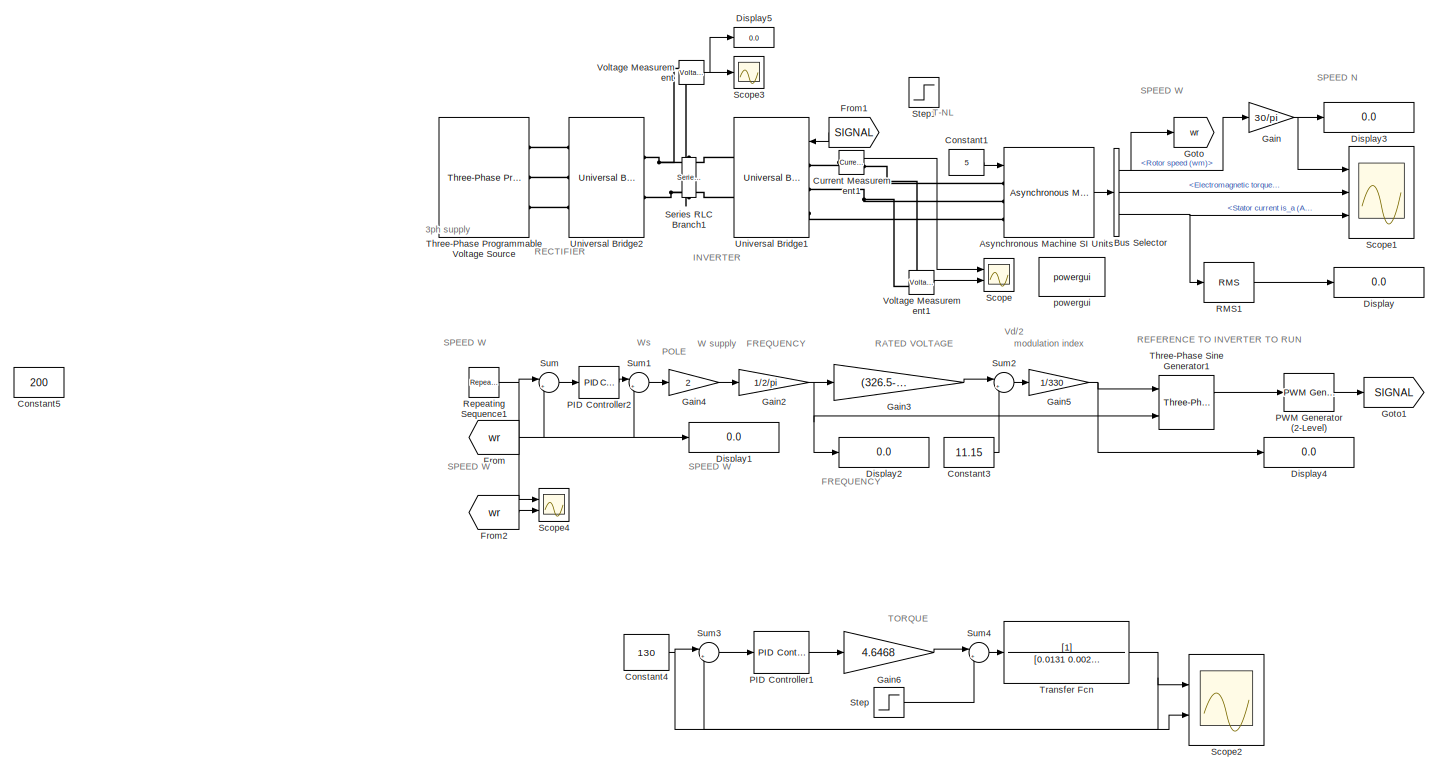
[diagram: root canvas - part 1/1, most of the canvas]
MODEL slx_bcdd4f59ab20
KIND model
CONFIG AbsTol = auto
CONFIG EnableMultiTasking = on
CONFIG FixedStep = auto
CONFIG MaxStep = 1e-4
CONFIG MinStep = auto
CONFIG RelTol = 1e-3
CONFIG SampleTimeConstraint = Unconstrained
CONFIG SolverName = ode23s
CONFIG StartTime = 0.0
CONFIG StopTime = 10
BLOCK [Reference] Asynchronous Machine SI Units1  REF=spsAsynchronousMachineSIUnitsLib/Asynchronous Machine
SI Units
  Ports = [1, 1, 0, 0, 0, 3]
  SourceBlock = spsAsynchronousMachineSIUnitsLib/Asynchronous Machine\nSI Units
  SourceProductBaseCode = PS
  SourceType = Asynchronous Machine
BLOCK [BusSelector] Bus Selector
  OutputSignals = Mechanical.Rotor speed (wm),Mechanical.Electromagnetic torque Te (N*m),Stator measurements.Stator current is_a (A)
  Ports = [1, 3]
BLOCK [Constant] Constant1
  Value = 5
BLOCK [Constant] Constant3
  Value = 11.15
BLOCK [Constant] Constant4
  Value = 130
BLOCK [Constant] Constant5
  Value = 200
BLOCK [Reference] Current Measurement1  REF=spsCurrentMeasurementLib/Current Measurement
  Ports = [0, 1, 0, 0, 0, 1, 1]
  SourceBlock = spsCurrentMeasurementLib/Current Measurement
  SourceProductBaseCode = PS
  SourceType = Current Measurement
  UserDataPersistent = on
BLOCK [Display] Display
  Decimation = 1
  Ports = [1]
BLOCK [Display] Display1
  Decimation = 1
  Ports = [1]
BLOCK [Display] Display2
  Decimation = 1
  Ports = [1]
BLOCK [Display] Display3
  Decimation = 1
  Ports = [1]
BLOCK [Display] Display4
  Decimation = 1
  Ports = [1]
BLOCK [Display] Display5
  Decimation = 1
  Ports = [1]
BLOCK [From] From
  GotoTag = wr
BLOCK [From] From1
  GotoTag = SIGNAL
  NameLocation = top
BLOCK [From] From2
  GotoTag = wr
BLOCK [Gain] Gain
  Gain = 30/pi
BLOCK [Gain] Gain2
  Gain = 1/2/pi
BLOCK [Gain] Gain3
  Gain = (326.5-11.15)/50
BLOCK [Gain] Gain4
  Gain = 2
BLOCK [Gain] Gain5
  Gain = 1/330
BLOCK [Gain] Gain6
  Gain = 4.6468
BLOCK [Goto] Goto
  GotoTag = wr
BLOCK [Goto] Goto1
  GotoTag = SIGNAL
BLOCK [Reference] PID Controller1  REF=slpidlib/PID Controller
  Ports = [1, 1]
  SourceBlock = slpidlib/PID Controller
  SourceProductBaseCode = SL
  SourceType = PID 1dof
BLOCK [Reference] PID Controller2  REF=slpidlib/PID Controller
  Ports = [1, 1]
  SourceBlock = slpidlib/PID Controller
  SourceProductBaseCode = SL
  SourceType = PID 1dof
BLOCK [Reference] PWM Generator (2-Level)  REF=spsPWMGenerator2LevelLib/PWM Generator
(2-Level)
  Ports = [1, 1]
  SourceBlock = spsPWMGenerator2LevelLib/PWM Generator\n(2-Level)
  SourceProductBaseCode = PS
  SourceType = PWM Generator (2-Level)
BLOCK [Reference] RMS1  REF=spsRMSLib/RMS
  Ports = [1, 1]
  SourceBlock = spsRMSLib/RMS
  SourceProductBaseCode = PS
  SourceType = RMS
BLOCK [Reference] Repeating Sequence1  REF=simulink/Sources/Repeating
Sequence
  Ports = [0, 1]
  SourceBlock = simulink/Sources/Repeating\nSequence
  SourceProductBaseCode = SL
  SourceType = Repeating table
BLOCK [Scope] Scope
  Floating = off
  NumInputPorts = 2
  Ports = [2]
  ScopeSpecificationString = Simulink.scopes.TimeScopeBlockCfg('CurrentConfiguration', extmgr.ConfigurationSet(extmgr.Configuration('Core','General UI',true),extmgr.Configuration('Core','Source UI',true),extmgr.Configuration('Sources','WiredSimulink',true,'DataLoggingVariableName','ScopeData1'),extmgr.Configuration('Visuals','Time Domain',true,'SerializedDisplays',{struct('MinYLimReal','-43.78871','MaxYLimReal','40.24617','YL...<+2069ch>
BLOCK [Scope] Scope1
  Floating = off
  NumInputPorts = 3
  Ports = [3]
  ScopeSpecificationString = Simulink.scopes.TimeScopeBlockCfg('CurrentConfiguration', extmgr.ConfigurationSet(extmgr.Configuration('Core','General UI',true,'FigureColor',[1 1 1]),extmgr.Configuration('Core','Source UI',true),extmgr.Configuration('Sources','WiredSimulink',true,'DataLoggingVariableName','ScopeData2'),extmgr.Configuration('Visuals','Time Domain',true,'SerializedDisplays',{struct('MinYLimReal','-425.69378','MaxY...<+3195ch>
BLOCK [Scope] Scope2
  Floating = off
  NumInputPorts = 2
  Ports = [2]
  ScopeSpecificationString = Simulink.scopes.TimeScopeBlockCfg('CurrentConfiguration', extmgr.ConfigurationSet(extmgr.Configuration('Core','General UI',true,'FigureColor',[1 1 1]),extmgr.Configuration('Core','Source UI',true),extmgr.Configuration('Sources','WiredSimulink',true),extmgr.Configuration('Visuals','Time Domain',true,'SerializedDisplays',{struct('MinYLimReal','-18.90955','MaxYLimReal','170.18592','YLabelReal','','Mi...<+1709ch>
BLOCK [Scope] Scope3
  Floating = off
  NumInputPorts = 1
  Ports = [1]
  ScopeSpecificationString = Simulink.scopes.TimeScopeBlockCfg('CurrentConfiguration', extmgr.ConfigurationSet(extmgr.Configuration('Core','General UI',true,'FigureColor',[1 1 1]),extmgr.Configuration('Core','Source UI',true),extmgr.Configuration('Sources','WiredSimulink',true,'DataLoggingVariableName','ScopeData1'),extmgr.Configuration('Visuals','Time Domain',true,'SerializedDisplays',{struct('MinYLimReal','-82.89463','MaxYL...<+1608ch>
BLOCK [Scope] Scope4
  Floating = off
  NumInputPorts = 2
  Ports = [2]
  ScopeSpecificationString = Simulink.scopes.TimeScopeBlockCfg('CurrentConfiguration', extmgr.ConfigurationSet(extmgr.Configuration('Core','General UI',true,'FigureColor',[1 1 1]),extmgr.Configuration('Core','Source UI',true),extmgr.Configuration('Sources','WiredSimulink',true,'DataLoggingVariableName','ScopeData2'),extmgr.Configuration('Visuals','Time Domain',true,'SerializedDisplays',{struct('MinYLimReal','-44.57855','MaxYL...<+1714ch>
BLOCK [Reference] Series RLC Branch1  REF=spsSeriesRLCBranchLib/Series RLC Branch
  NameLocation = left
  Ports = [0, 0, 0, 0, 0, 1, 1]
  SourceBlock = spsSeriesRLCBranchLib/Series RLC Branch
  SourceProductBaseCode = PS
  SourceType = Series RLC Branch
BLOCK [Step] Step
  After = 10
  SampleTime = 0
  Time = 5
BLOCK [Step] Step1
  After = 10
  SampleTime = 0
BLOCK [Sum] Sum
  Inputs = |+-
  Ports = [2, 1]
BLOCK [Sum] Sum1
  Inputs = |++
  Ports = [2, 1]
BLOCK [Sum] Sum2
  Inputs = |++
  Ports = [2, 1]
BLOCK [Sum] Sum3
  Inputs = |+-
  Ports = [2, 1]
BLOCK [Sum] Sum4
  Inputs = |+-
  Ports = [2, 1]
BLOCK [Reference] Three-Phase Programmable Voltage Source  REF=spsThreePhaseProgrammableVoltageSourceLib/Three-Phase
Programmable
Voltage Source
  Ports = [0, 0, 0, 0, 0, 1, 3]
  SourceBlock = spsThreePhaseProgrammableVoltageSourceLib/Three-Phase\nProgrammable\nVoltage Source
  SourceProductBaseCode = PS
  SourceType = Three-Phase Programmable Voltage Source
BLOCK [Reference] Three-Phase Sine Generator1  REF=spsThreePhaseSineGeneratorLib/Three-Phase
Sine Generator
  Ports = [3, 2]
  SourceBlock = spsThreePhaseSineGeneratorLib/Three-Phase\nSine Generator
  SourceProductBaseCode = PS
  SourceType = Three-phase Sine Generator
BLOCK [TransferFcn] Transfer Fcn
  Denominator = [0.0131 0.002985]
BLOCK [Reference] Universal Bridge1  REF=spsUniversalBridgeLib/Universal Bridge
  Ports = [1, 0, 0, 0, 0, 3, 2]
  SourceBlock = spsUniversalBridgeLib/Universal Bridge
  SourceProductBaseCode = PS
  SourceType = Universal Bridge
BLOCK [Reference] Universal Bridge2  REF=spsUniversalBridgeLib/Universal Bridge
  Ports = [0, 0, 0, 0, 0, 3, 2]
  SourceBlock = spsUniversalBridgeLib/Universal Bridge
  SourceProductBaseCode = PS
  SourceType = Universal Bridge
BLOCK [Reference] Voltage Measurement  REF=spsVoltageMeasurementLib/Voltage Measurement
  Ports = [0, 1, 0, 0, 0, 2]
  SourceBlock = spsVoltageMeasurementLib/Voltage Measurement
  SourceProductBaseCode = PS
  SourceType = Voltage Measurement
  UserDataPersistent = on
BLOCK [Reference] Voltage Measurement1  REF=spsVoltageMeasurementLib/Voltage Measurement
  Ports = [0, 1, 0, 0, 0, 2]
  SourceBlock = spsVoltageMeasurementLib/Voltage Measurement
  SourceProductBaseCode = PS
  SourceType = Voltage Measurement
  UserDataPersistent = on
BLOCK [Reference] powergui  REF=spspowerguiLib/powergui
  Ports = []
  Priority = 1
  SourceBlock = spspowerguiLib/powergui
  SourceProductBaseCode = PS
  SourceType = PSB option menu block
ANNOTATION (root): POLE
ANNOTATION (root): RATED VOLTAGE
ANNOTATION (root): REFERENCE TO INVERTER TO RUN
ANNOTATION (root): Vd/2
ANNOTATION (root): modulation index
ANNOTATION (root): FREQUENCY
ANNOTATION (root): SPEED W
ANNOTATION (root): W supply
ANNOTATION (root): Ws
ANNOTATION (root): 3ph supply
ANNOTATION (root): SPEED N
ANNOTATION (root): TORQUE
ANNOTATION (root): RECTIFIER
ANNOTATION (root): T-NL
ANNOTATION (root): INVERTER
LINE Asynchronous Machine SI Units1:1 -> Bus Selector:1
NET Bus Selector:1 -> Gain:1, Goto:1
LINE Bus Selector:2 -> Scope1:2
NET Bus Selector:3 -> RMS1:1, Scope1:3
LINE Constant1:1 -> Asynchronous Machine SI Units1:1
LINE Constant3:1 -> Sum2:2
NET Constant4:1 -> Scope2:2, Sum3:1
LINE Current Measurement1:1 -> Scope:1
LINE From1:1 -> Universal Bridge1:1
LINE From2:1 -> Scope4:2
NET From:1 -> Display1:1, Sum1:2, Sum:2
NET Gain2:1 -> Display2:1, Gain3:1, Three-Phase Sine Generator1:3
LINE Gain3:1 -> Sum2:1
LINE Gain4:1 -> Gain2:1
NET Gain5:1 -> Display4:1, Three-Phase Sine Generator1:1
LINE Gain6:1 -> Sum4:1
NET Gain:1 -> Display3:1, Scope1:1
LINE PID Controller1:1 -> Gain6:1
LINE PID Controller2:1 -> Sum1:1
LINE PWM Generator (2-Level):1 -> Goto1:1
LINE RMS1:1 -> Display:1
NET Repeating Sequence1:1 -> Scope4:1, Sum:1
LINE Step:1 -> Sum4:2
LINE Sum1:1 -> Gain4:1
LINE Sum2:1 -> Gain5:1
LINE Sum3:1 -> PID Controller1:1
LINE Sum4:1 -> Transfer Fcn:1
LINE Sum:1 -> PID Controller2:1
LINE Three-Phase Sine Generator1:1 -> PWM Generator (2-Level):1
NET Transfer Fcn:1 -> Scope2:1, Sum3:2
LINE Voltage Measurement1:1 -> Scope:2
NET Voltage Measurement:1 -> Display5:1, Scope3:1
PNET net1: Asynchronous Machine SI Units1:LConn1 -- Current Measurement1:RConn1 -- Voltage Measurement1:LConn1
PNET net2: Asynchronous Machine SI Units1:LConn2 -- Universal Bridge1:LConn2 -- Voltage Measurement1:LConn2
PLINE Asynchronous Machine SI Units1:LConn3 -- Universal Bridge1:LConn3
PLINE Current Measurement1:LConn1 -- Universal Bridge1:LConn1
PNET net3: Series RLC Branch1:LConn1 -- Universal Bridge1:RConn1 -- Universal Bridge2:RConn1 -- Voltage Measurement:LConn1
PNET net4: Series RLC Branch1:RConn1 -- Universal Bridge1:RConn2 -- Universal Bridge2:RConn2 -- Voltage Measurement:LConn2
PLINE Three-Phase Programmable Voltage Source:RConn1 -- Universal Bridge2:LConn1
PLINE Three-Phase Programmable Voltage Source:RConn2 -- Universal Bridge2:LConn2
PLINE Three-Phase Programmable Voltage Source:RConn3 -- Universal Bridge2:LConn3
note: NET lines group one-source signal fan-out (src -> all destinations, sorted); 1:1 wires keep LINE; PNET lines group multi-terminal physical nets as a canonical sorted terminal list (undirected conserving connections); 2-terminal nets keep the pairwise PLINE form
